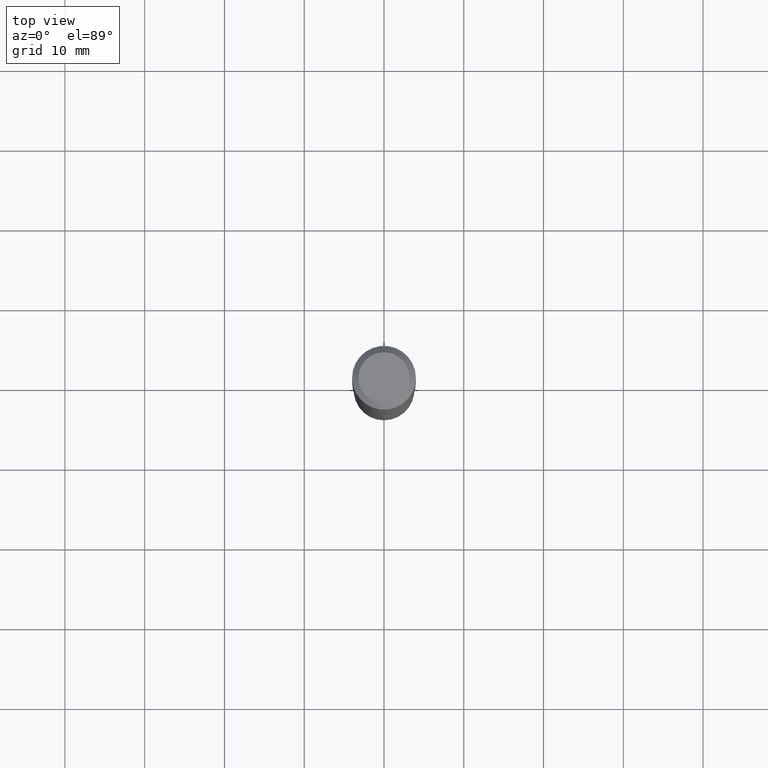
[diagram: clean part render]
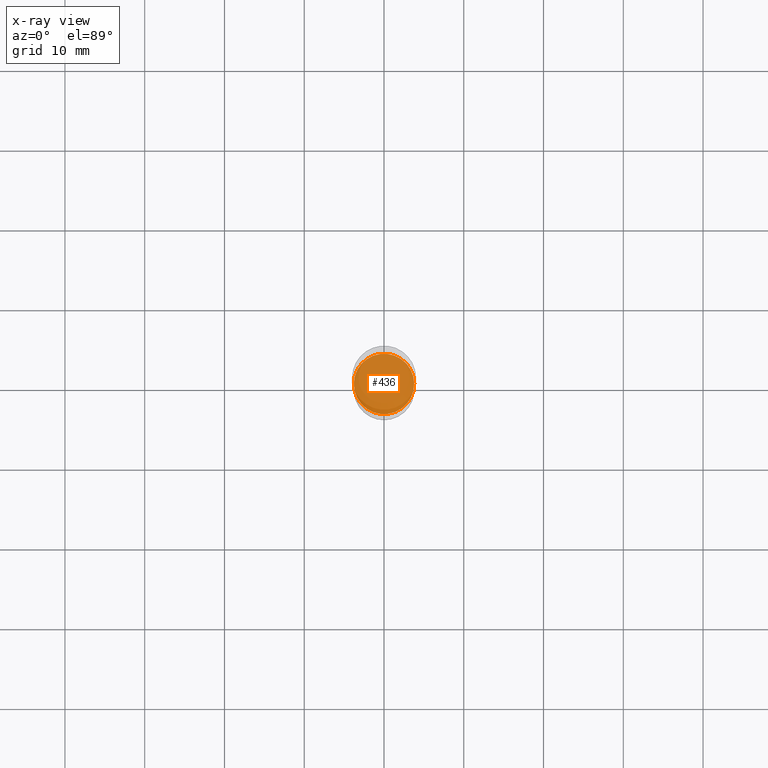
[diagram: x-ray — body ghosted, one internal face saturated and labeled with its STEP entity id]
A machine part, top view, then the same camera in x-ray: the body is ghosted and one INTERNAL B-rep face — a face not visible from any outside direction — is saturated and labeled: STEP entity #436.
In plain terms, the highlighted planar face has unit normal (-0, 0, 1).
Its self-contained STEP definition (entity closure, byte-faithful):
#3 = DIRECTION ( 'NONE',  ( 1.000000000000000000, -6.982962677686265922E-15, 4.876176775795935793E-29 ) ) ;
#11 = VERTEX_POINT ( 'NONE', #308 ) ;
#34 = CIRCLE ( 'NONE', #310, 0.1491000000000000103 ) ;
#54 = DIRECTION ( 'NONE',  ( -2.445468806185136597E-29, 3.491481338843145583E-15, 1.000000000000000000 ) ) ;
#94 = CIRCLE ( 'NONE', #155, 0.1491000000000000103 ) ;
#129 = DIRECTION ( 'NONE',  ( 1.000000000000000000, -6.982962677686265133E-15, 0.000000000000000000 ) ) ;
#152 = EDGE_CURVE ( 'NONE', #176, #11, #34, .T. ) ;
#155 = AXIS2_PLACEMENT_3D ( 'NONE', #246, #54, #357 ) ;
#176 = VERTEX_POINT ( 'NONE', #321 ) ;
#191 = FACE_OUTER_BOUND ( 'NONE', #220, .T. ) ;
#212 = EDGE_CURVE ( 'NONE', #11, #176, #94, .T. ) ;
#220 = EDGE_LOOP ( 'NONE', ( #291, #405 ) ) ;
#226 = CARTESIAN_POINT ( 'NONE',  ( 4.390350147744175670E-29, -6.268256447625099205E-15, -1.795300000000000118 ) ) ;
#246 = CARTESIAN_POINT ( 'NONE',  ( 4.390350147744175670E-29, -6.268256447625099205E-15, -1.795300000000000118 ) ) ;
#291 = ORIENTED_EDGE ( 'NONE', *, *, #152, .F. ) ;
#305 = PLANE ( 'NONE',  #323 ) ;
#308 = CARTESIAN_POINT ( 'NONE',  ( -0.1491000000000000103, -5.206188001432678554E-15, -1.795300000000000118 ) ) ;
#310 = AXIS2_PLACEMENT_3D ( 'NONE', #312, #432, #129 ) ;
#312 = CARTESIAN_POINT ( 'NONE',  ( 4.390350147744175670E-29, -6.268256447625099205E-15, -1.795300000000000118 ) ) ;
#321 = CARTESIAN_POINT ( 'NONE',  ( 0.1491000000000000103, -7.309416182868121799E-15, -1.795300000000000118 ) ) ;
#323 = AXIS2_PLACEMENT_3D ( 'NONE', #226, #376, #3 ) ;
#357 = DIRECTION ( 'NONE',  ( 1.000000000000000000, -6.982962677686265133E-15, 0.000000000000000000 ) ) ;
#376 = DIRECTION ( 'NONE',  ( -2.438088387897960049E-29, 3.491481338843145188E-15, 1.000000000000000000 ) ) ;
#405 = ORIENTED_EDGE ( 'NONE', *, *, #212, .F. ) ;
#432 = DIRECTION ( 'NONE',  ( -2.445468806185136597E-29, 3.491481338843145583E-15, 1.000000000000000000 ) ) ;
#436 = ADVANCED_FACE ( 'NONE', ( #191 ), #305, .F. ) ;